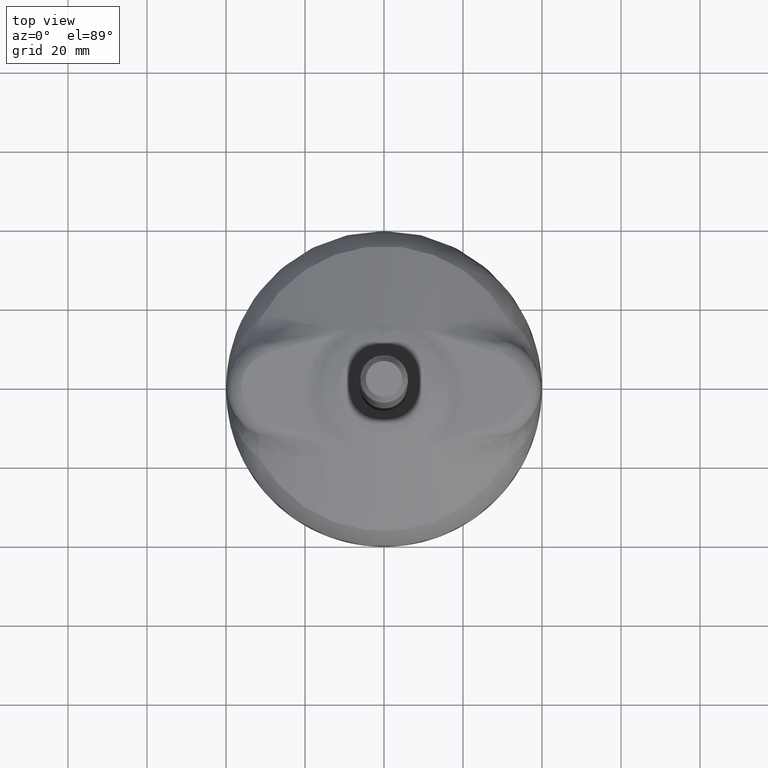
[diagram: clean part render]
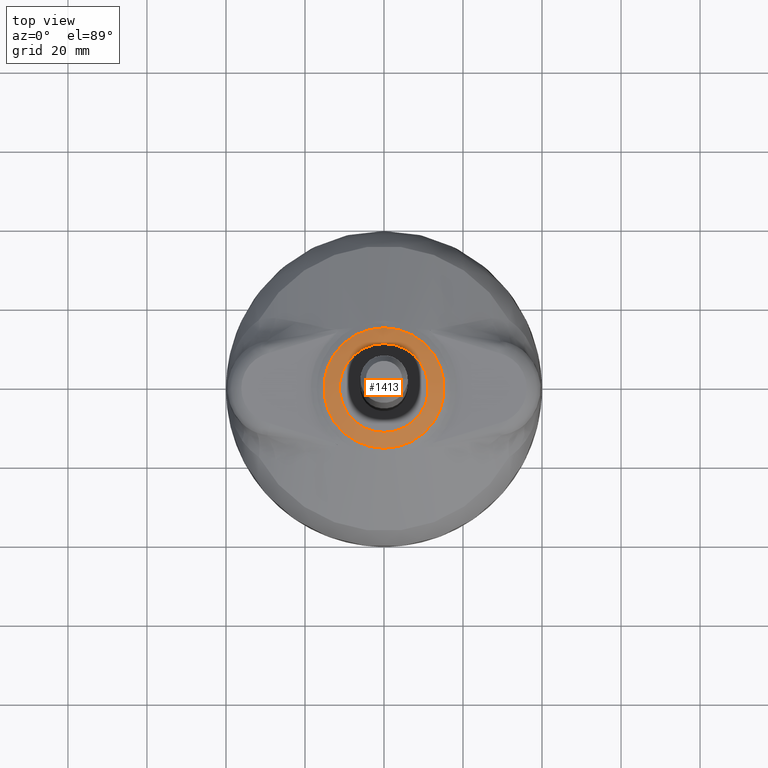
[diagram: same view with one face highlighted and labeled with its STEP entity id]
A machine part, top view. The second image highlights one B-rep face of the part: STEP entity #1413.
In plain terms, the highlighted face is a freeform B-spline surface patch.
Its self-contained STEP definition (entity closure, byte-faithful):
#1327=CARTESIAN_POINT('',(-0.000001095672218,-11.249995544982877,16.500006607056314));
#1328=VERTEX_POINT('',#1327);
#1329=CARTESIAN_POINT('',(-0.000001095672218,11.250005567298382,16.499999773660495));
#1330=VERTEX_POINT('',#1329);
#1331=CARTESIAN_POINT('',(-0.000001095672218,0.000005011157753,16.500003190358346));
#1332=DIRECTION('',(0.000000066404364,-0.000000303706472,-0.999999999999952));
#1333=DIRECTION('',(3.866960E-029,0.999999999999954,-0.000000303706472));
#1334=AXIS2_PLACEMENT_3D('',#1331,#1332,#1333);
#1335=CIRCLE('',#1334,11.250000556141147);
#1336=EDGE_CURVE('',#1328,#1330,#1335,.T.);
#1338=CARTESIAN_POINT('',(-0.000001095672218,0.000005011157753,16.500003190358346));
#1339=DIRECTION('',(0.000000066404364,-0.000000303706472,-0.999999999999952));
#1340=DIRECTION('',(3.866960E-029,0.999999999999954,-0.000000303706472));
#1341=AXIS2_PLACEMENT_3D('',#1338,#1339,#1340);
#1342=CIRCLE('',#1341,11.250000556141147);
#1343=EDGE_CURVE('',#1330,#1328,#1342,.T.);
#1348=CARTESIAN_POINT('',(-0.000000459276120,11.250005114750014,16.499999773660999));
#1349=CARTESIAN_POINT('',(-0.000000338327474,13.388095352868556,16.499999124309173));
#1350=CARTESIAN_POINT('',(-0.000000162673972,15.241106430324793,15.433331478578260));
#1351=CARTESIAN_POINT('',(-11.250001199264986,11.250005751145919,16.499999026611665));
#1352=CARTESIAN_POINT('',(-13.388091437383624,13.388096110213066,16.499998235281268));
#1353=CARTESIAN_POINT('',(-15.241102767962298,15.241107292491430,15.433330466502273));
#1354=CARTESIAN_POINT('',(-11.250001199264990,0.000005011157528,16.500002443309704));
#1355=CARTESIAN_POINT('',(-13.388091437383627,0.000005011157485,16.500002301331190));
#1356=CARTESIAN_POINT('',(-15.241102767962301,0.000004687203751,15.433335095323780));
#1357=CARTESIAN_POINT('',(-11.250001199264986,-11.249995092434743,16.500005860007541));
#1358=CARTESIAN_POINT('',(-13.388091437383627,-13.388085330553331,16.500006367380870));
#1359=CARTESIAN_POINT('',(-15.241102767962300,-15.241097055917006,15.433339724145016));
#1360=CARTESIAN_POINT('',(-0.000001095672218,-11.249995092434517,16.500006607056644));
#1361=CARTESIAN_POINT('',(-0.000001095672218,-13.388085330553061,16.500007256408491));
#1362=CARTESIAN_POINT('',(-0.000001024840869,-15.241097055916699,15.433340736220686));
#1363=CARTESIAN_POINT('',(11.249999007920550,-11.249995092434288,16.500007354105744));
#1364=CARTESIAN_POINT('',(13.388089246039190,-13.388085330552791,16.500008145436116));
#1365=CARTESIAN_POINT('',(15.241100718280562,-15.241097055916390,15.433341748296350));
#1366=CARTESIAN_POINT('',(11.249999007920550,0.000005011157982,16.500003937407907));
#1367=CARTESIAN_POINT('',(13.388089246039190,0.000005011158025,16.500004079386432));
#1368=CARTESIAN_POINT('',(15.241100718280560,0.000004687204366,15.433337119475114));
#1369=CARTESIAN_POINT('',(11.249999007920554,11.250005751146373,16.500000520709872));
#1370=CARTESIAN_POINT('',(13.388089246039192,13.388096110213608,16.500000013336521));
#1371=CARTESIAN_POINT('',(15.241100718280563,15.241107292492046,15.433332490653612));
#1372=CARTESIAN_POINT('',(-0.000001732068316,11.250005114750010,16.499999773660910));
#1373=CARTESIAN_POINT('',(-0.000001853016962,13.388095352868550,16.499999124309067));
#1374=CARTESIAN_POINT('',(-0.000001887007765,15.241106430324791,15.433331478578145));
#1382=(BOUNDED_SURFACE()B_SPLINE_SURFACE(2,2,((#1348,#1351,#1354,#1357,#1360,#1363,#1366,#1369,#1372),(#1349,#1352,#1355,#1358,#1361,#1364,#1367,#1370,#1373),(#1350,#1353,#1356,#1359,#1362,#1365,#1368,#1371,#1374)),.UNSPECIFIED.,.F.,.T.,.U.)B_SPLINE_SURFACE_WITH_KNOTS((3,3),(3,2,2,2,3),(0.750000014761512,0.835073261173581),(-1.000000E-008,0.250000000000000,0.500000000000000,0.750000000000000,1.000000010000000),.UNSPECIFIED.)GEOMETRIC_REPRESENTATION_ITEM()RATIONAL_B_SPLINE_SURFACE(((0.999999988843086,0.707106745013147,0.999999965411628,0.707106756728875,0.999999965411628,0.707106756728875,0.999999965411628,0.707106745013147,0.999999988843086),(0.900330484486610,0.636629765424260,0.900330463390554,0.636629775972288,0.900330463390554,0.636629775972288,0.900330463390554,0.636629765424260,0.900330484486610),(0.868494654571853,0.614118435107287,0.868494634221757,0.614118445282335,0.868494634221757,0.614118445282335,0.868494634221757,0.614118435107287,0.868494654571853)))REPRESENTATION_ITEM('')SURFACE());
#1383=CARTESIAN_POINT('',(-0.000001024840870,15.241106014570988,15.433331503870244));
#1384=VERTEX_POINT('',#1383);
#1385=CARTESIAN_POINT('',(-0.000000564437306,11.250002017068470,8.499999773661573));
#1386=DIRECTION('',(0.999999999999998,2.016744E-014,0.000000066404364));
#1387=DIRECTION('',(0.0,0.999999999999954,-0.000000303706472));
#1388=AXIS2_PLACEMENT_3D('',#1385,#1386,#1387);
#1389=CIRCLE('',#1388,8.0);
#1390=EDGE_CURVE('',#1384,#1330,#1389,.T.);
#1391=ORIENTED_EDGE('',*,*,#1390,.T.);
#1392=ORIENTED_EDGE('',*,*,#1343,.T.);
#1393=ORIENTED_EDGE('',*,*,#1336,.T.);
#1394=ORIENTED_EDGE('',*,*,#1390,.F.);
#1395=CARTESIAN_POINT('',(-0.000001024840871,-15.241096640162857,15.433340761512468));
#1396=VERTEX_POINT('',#1395);
#1397=CARTESIAN_POINT('',(-0.000001024840871,0.000004687204065,15.433336132691363));
#1398=DIRECTION('',(0.000000066404364,-0.000000303706472,-0.999999999999952));
#1399=DIRECTION('',(3.866960E-029,0.999999999999954,-0.000000303706472));
#1400=AXIS2_PLACEMENT_3D('',#1397,#1398,#1399);
#1401=CIRCLE('',#1400,15.241101327367621);
#1402=EDGE_CURVE('',#1396,#1384,#1401,.T.);
#1403=ORIENTED_EDGE('',*,*,#1402,.F.);
#1404=CARTESIAN_POINT('',(-0.000001024840871,0.000004687204065,15.433336132691363));
#1405=DIRECTION('',(0.000000066404364,-0.000000303706472,-0.999999999999952));
#1406=DIRECTION('',(3.866960E-029,0.999999999999954,-0.000000303706472));
#1407=AXIS2_PLACEMENT_3D('',#1404,#1405,#1406);
#1408=CIRCLE('',#1407,15.241101327367621);
#1409=EDGE_CURVE('',#1384,#1396,#1408,.T.);
#1410=ORIENTED_EDGE('',*,*,#1409,.F.);
#1411=EDGE_LOOP('',(#1391,#1392,#1393,#1394,#1403,#1410));
#1412=FACE_OUTER_BOUND('',#1411,.T.);
#1413=ADVANCED_FACE('',(#1412),#1382,.T.);